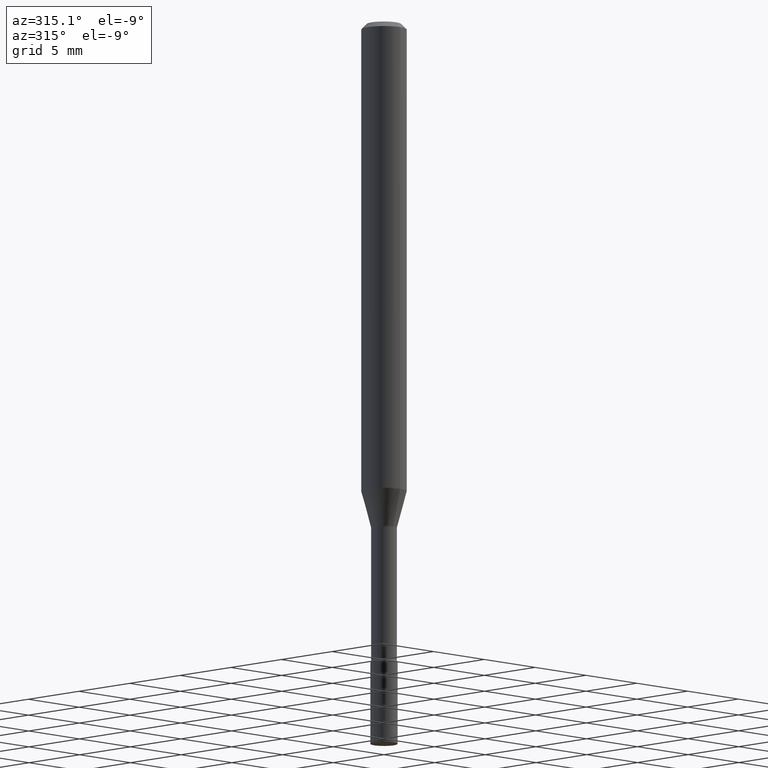
[diagram: clean part render]
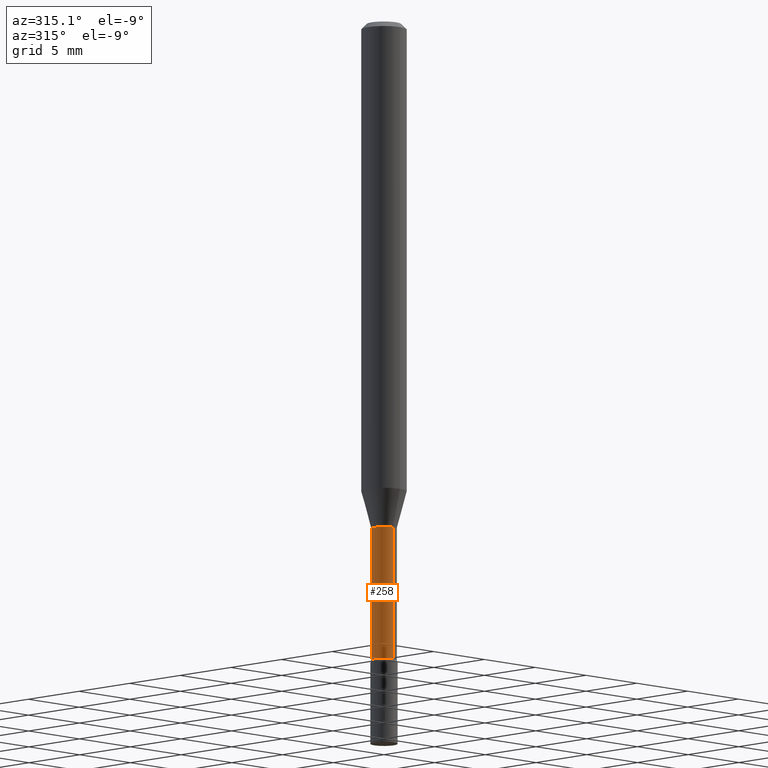
[diagram: same view with one face highlighted and labeled with its STEP entity id]
A machine part, auxiliary view. The second image highlights one B-rep face of the part: STEP entity #258.
In plain terms, the highlighted cylindrical surface (edge-blend (fillet) strip) has radius 0.8954 mm, axis along (-0, 0, 1).
Its self-contained STEP definition (entity closure, byte-faithful):
#1 = VERTEX_POINT ( 'NONE', #246 ) ;
#2 = FACE_OUTER_BOUND ( 'NONE', #465, .T. ) ;
#56 = DIRECTION ( 'NONE',  ( -6.982962677686266711E-15, -1.000000000000000000, 0.000000000000000000 ) ) ;
#64 = VERTEX_POINT ( 'NONE', #317 ) ;
#67 = DIRECTION ( 'NONE',  ( -6.982962677686266711E-15, -1.000000000000000000, 0.000000000000000000 ) ) ;
#68 = VERTEX_POINT ( 'NONE', #480 ) ;
#74 = EDGE_CURVE ( 'NONE', #1, #68, #362, .T. ) ;
#122 = DIRECTION ( 'NONE',  ( -6.982962677686265133E-15, -1.000000000000000000, 3.491474194419169947E-15 ) ) ;
#123 = CARTESIAN_POINT ( 'NONE',  ( 0.000000000000000000, 0.000000000000000000, 0.000000000000000000 ) ) ;
#143 = ORIENTED_EDGE ( 'NONE', *, *, #74, .T. ) ;
#149 = AXIS2_PLACEMENT_3D ( 'NONE', #463, #163, #56 ) ;
#155 = EDGE_CURVE ( 'NONE', #64, #372, #341, .T. ) ;
#162 = DIRECTION ( 'NONE',  ( -2.445473795109734051E-29, 3.491474194419170735E-15, 1.000000000000000000 ) ) ;
#163 = DIRECTION ( 'NONE',  ( -2.445473795109733770E-29, 3.491474194419170341E-15, 1.000000000000000000 ) ) ;
#202 = CIRCLE ( 'NONE', #149, 0.03524999999999998967 ) ;
#203 = EDGE_CURVE ( 'NONE', #64, #1, #360, .T. ) ;
#211 = ORIENTED_EDGE ( 'NONE', *, *, #155, .F. ) ;
#226 = ORIENTED_EDGE ( 'NONE', *, *, #203, .T. ) ;
#240 = CARTESIAN_POINT ( 'NONE',  ( 2.504663143554355380E-16, 0.03525000000000003825, -1.230744653532758807E-16 ) ) ;
#246 = CARTESIAN_POINT ( 'NONE',  ( -2.461494343883982794E-16, -0.03525000000000625550, -1.767098259685360384 ) ) ;
#254 = DIRECTION ( 'NONE',  ( -2.445473795109734051E-29, 3.491474194419170735E-15, 1.000000000000000000 ) ) ;
#258 = ADVANCED_FACE ( 'NONE', ( #2 ), #312, .T. ) ;
#291 = DIRECTION ( 'NONE',  ( -2.445473795109733770E-29, 3.491474194419170341E-15, 1.000000000000000000 ) ) ;
#310 = CARTESIAN_POINT ( 'NONE',  ( 4.321392487444564369E-29, -6.169777972694461128E-15, -1.767098259685360384 ) ) ;
#312 = CYLINDRICAL_SURFACE ( 'NONE', #473, 0.03525000000000003825 ) ;
#317 = CARTESIAN_POINT ( 'NONE',  ( 2.584599201327800595E-16, 0.03524999999999392508, -1.767098259685360384 ) ) ;
#341 = LINE ( 'NONE', #240, #457 ) ;
#356 = ORIENTED_EDGE ( 'NONE', *, *, #426, .F. ) ;
#360 = CIRCLE ( 'NONE', #442, 0.03525000000000008682 ) ;
#362 = LINE ( 'NONE', #416, #488 ) ;
#372 = VERTEX_POINT ( 'NONE', #485 ) ;
#416 = CARTESIAN_POINT ( 'NONE',  ( -2.461494343884411244E-16, -0.03525000000000003825, 1.230744653532758807E-16 ) ) ;
#426 = EDGE_CURVE ( 'NONE', #372, #68, #202, .T. ) ;
#429 = DIRECTION ( 'NONE',  ( -2.445473795109733770E-29, 3.491474194419170341E-15, 1.000000000000000000 ) ) ;
#442 = AXIS2_PLACEMENT_3D ( 'NONE', #310, #429, #67 ) ;
#457 = VECTOR ( 'NONE', #162, 39.37007874015748143 ) ;
#463 = CARTESIAN_POINT ( 'NONE',  ( 3.428492604147288661E-29, -4.894958791656197287E-15, -1.401974787463811101 ) ) ;
#465 = EDGE_LOOP ( 'NONE', ( #211, #226, #143, #356 ) ) ;
#473 = AXIS2_PLACEMENT_3D ( 'NONE', #123, #291, #122 ) ;
#480 = CARTESIAN_POINT ( 'NONE',  ( -2.461494343884065131E-16, -0.03525000000000488853, -1.401974787463811101 ) ) ;
#485 = CARTESIAN_POINT ( 'NONE',  ( 2.504663143554786788E-16, 0.03524999999999509775, -1.401974787463811101 ) ) ;
#488 = VECTOR ( 'NONE', #254, 39.37007874015748143 ) ;